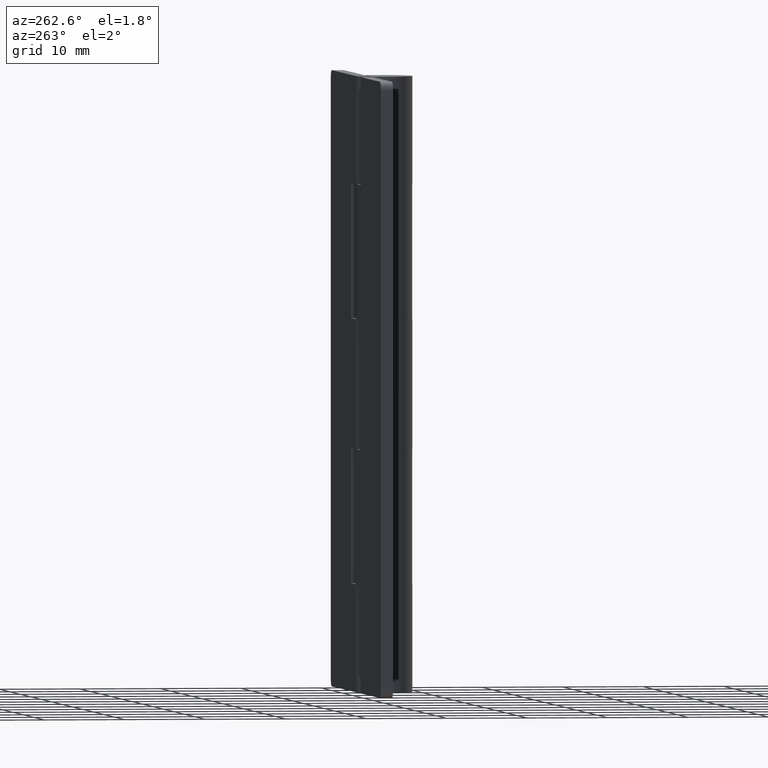
[diagram: clean part render]
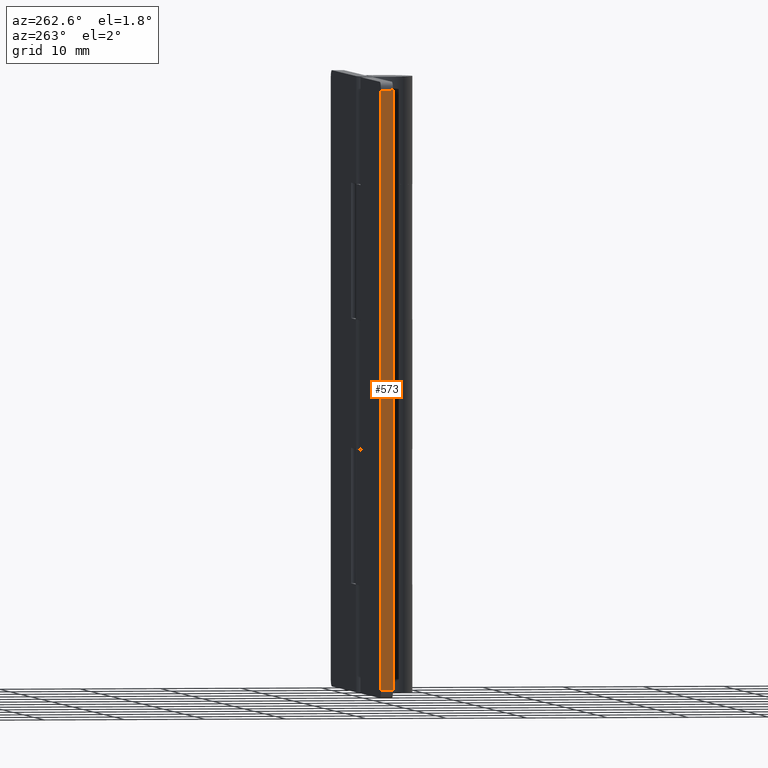
[diagram: same view with one face highlighted and labeled with its STEP entity id]
A machine part, auxiliary view. The second image highlights one B-rep face of the part: STEP entity #573.
In plain terms, the highlighted face is a freeform B-spline surface patch.
Its self-contained STEP definition (entity closure, byte-faithful):
#60=CARTESIAN_POINT('',(-24.0,2.0,74.999991999999693));
#61=VERTEX_POINT('',#60);
#82=CARTESIAN_POINT('',(-24.0,3.500000000000000,74.999991999999693));
#83=VERTEX_POINT('',#82);
#97=CARTESIAN_POINT('',(-24.0,2.0,74.999991999999693));
#98=CARTESIAN_POINT('',(-24.0,3.500000000000000,74.999991999999693));
#99=QUASI_UNIFORM_CURVE('',1,(#97,#98),.UNSPECIFIED.,.F.,.U.);
#100=EDGE_CURVE('',#61,#83,#99,.T.);
#119=CARTESIAN_POINT('',(-24.0,2.0,1.0));
#120=VERTEX_POINT('',#119);
#136=CARTESIAN_POINT('',(-24.0,3.500000000000000,1.0));
#137=VERTEX_POINT('',#136);
#138=CARTESIAN_POINT('',(-24.0,3.500000000000000,1.0));
#139=CARTESIAN_POINT('',(-24.0,2.0,1.0));
#140=QUASI_UNIFORM_CURVE('',1,(#138,#139),.UNSPECIFIED.,.F.,.U.);
#141=EDGE_CURVE('',#137,#120,#140,.T.);
#554=CARTESIAN_POINT('',(-24.0,1.925075002907291,-2.696299456973641));
#555=CARTESIAN_POINT('',(-24.0,1.925075002907291,78.696293441807811));
#556=CARTESIAN_POINT('',(-24.0,3.574925037325845,-2.696299456973641));
#557=CARTESIAN_POINT('',(-24.0,3.574925037325845,78.696293441807811));
#558=B_SPLINE_SURFACE_WITH_KNOTS('',1,1,((#554,#556),(#555,#557)),.UNSPECIFIED.,.F.,.F.,.U.,(2,2),(2,2),(0.0,81.392592898781444),(0.041708334948495,0.958291687403247),.UNSPECIFIED.);
#559=CARTESIAN_POINT('',(-24.0,3.500000000000000,74.999991999999693));
#560=CARTESIAN_POINT('',(-24.0,3.500000000000000,1.0));
#561=QUASI_UNIFORM_CURVE('',1,(#559,#560),.UNSPECIFIED.,.F.,.U.);
#562=EDGE_CURVE('',#83,#137,#561,.T.);
#563=ORIENTED_EDGE('',*,*,#562,.T.);
#564=ORIENTED_EDGE('',*,*,#141,.T.);
#565=CARTESIAN_POINT('',(-24.0,2.0,74.999991999999693));
#566=CARTESIAN_POINT('',(-24.0,2.0,1.0));
#567=QUASI_UNIFORM_CURVE('',1,(#565,#566),.UNSPECIFIED.,.F.,.U.);
#568=EDGE_CURVE('',#61,#120,#567,.T.);
#569=ORIENTED_EDGE('',*,*,#568,.F.);
#570=ORIENTED_EDGE('',*,*,#100,.T.);
#571=EDGE_LOOP('',(#563,#564,#569,#570));
#572=FACE_OUTER_BOUND('',#571,.T.);
#573=ADVANCED_FACE('',(#572),#558,.T.);